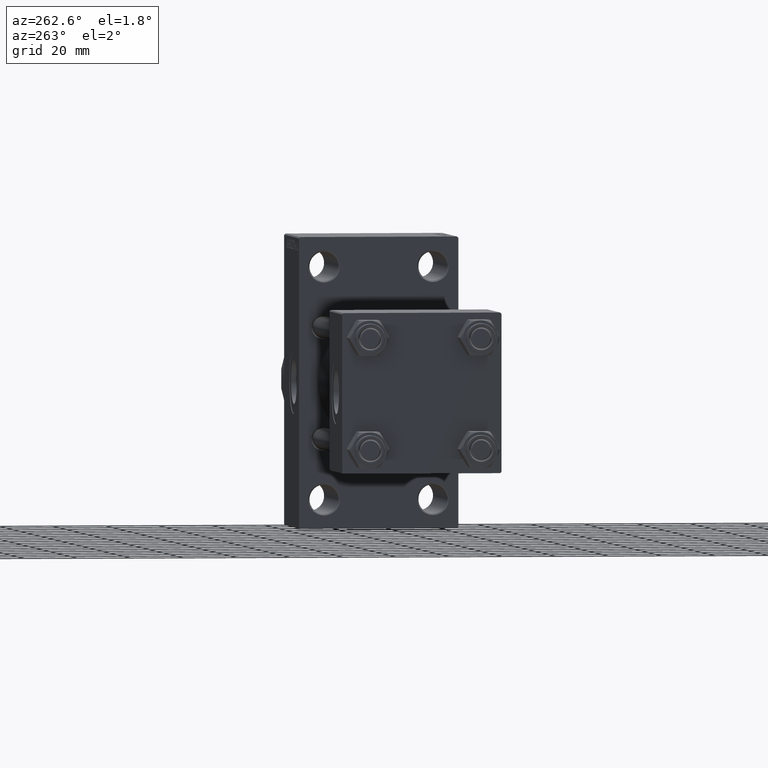
[diagram: clean part render]
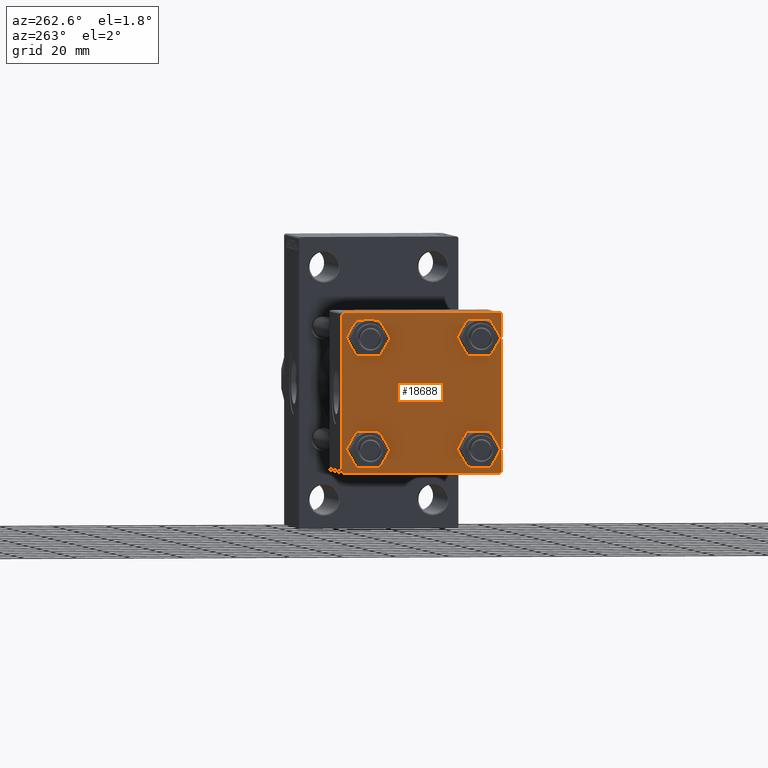
[diagram: same view with one face highlighted and labeled with its STEP entity id]
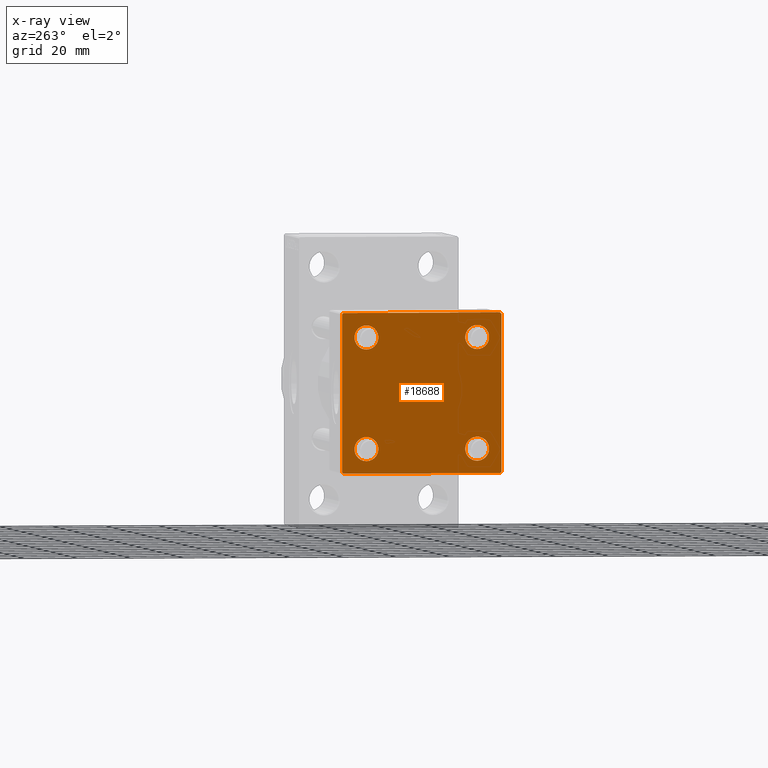
[diagram: x-ray of the same camera — body ghosted, the highlighted face saturated]
A machine part, auxiliary view. The second image highlights one B-rep face of the part: STEP entity #18688.
The next image is the same camera in x-ray: the body ghosted, the highlighted face saturated — about 0% of this face is hidden behind the body in this view.
In plain terms, the highlighted planar face has unit normal (-1, 0, 0).
Its self-contained STEP definition (entity closure, byte-faithful):
#886 = VERTEX_POINT ( 'NONE', #47175 ) ;
#973 = VECTOR ( 'NONE', #41781, 1000.000000000000000 ) ;
#1042 = DIRECTION ( 'NONE',  ( 1.000000000000000000, -0.000000000000000000, 0.000000000000000000 ) ) ;
#1069 = AXIS2_PLACEMENT_3D ( 'NONE', #19971, #42387, #27452 ) ;
#1319 = EDGE_CURVE ( 'NONE', #44512, #40948, #37919, .T. ) ;
#1399 = CIRCLE ( 'NONE', #40701, 4.500000000000017764 ) ;
#1974 = FACE_BOUND ( 'NONE', #31909, .T. ) ;
#2063 = ORIENTED_EDGE ( 'NONE', *, *, #30454, .T. ) ;
#2210 = CARTESIAN_POINT ( 'NONE',  ( 0.000000000000000000, 0.000000000000000000, 0.000000000000000000 ) ) ;
#2260 = VERTEX_POINT ( 'NONE', #24623 ) ;
#2820 = ORIENTED_EDGE ( 'NONE', *, *, #7984, .F. ) ;
#2905 = CARTESIAN_POINT ( 'NONE',  ( 0.000000000000000000, 20.84999999999999787, 20.85000000000000142 ) ) ;
#3078 = LINE ( 'NONE', #32989, #40359 ) ;
#3117 = CARTESIAN_POINT ( 'NONE',  ( 0.000000000000000000, -20.84999999999999076, 16.34999999999998721 ) ) ;
#3357 = DIRECTION ( 'NONE',  ( 0.000000000000000000, -0.7071067811865474617, 0.7071067811865474617 ) ) ;
#3779 = CARTESIAN_POINT ( 'NONE',  ( 0.000000000000000000, 20.84999999999999787, -20.85000000000000142 ) ) ;
#4187 = EDGE_CURVE ( 'NONE', #17090, #33267, #42508, .T. ) ;
#4341 = VECTOR ( 'NONE', #25258, 1000.000000000000114 ) ;
#4484 = AXIS2_PLACEMENT_3D ( 'NONE', #47143, #14578, #29522 ) ;
#4715 = DIRECTION ( 'NONE',  ( 0.000000000000000000, 0.000000000000000000, 1.000000000000000000 ) ) ;
#4888 = CARTESIAN_POINT ( 'NONE',  ( 0.000000000000000000, 29.99999999999999289, 30.00000000000000000 ) ) ;
#4902 = CARTESIAN_POINT ( 'NONE',  ( 0.000000000000000000, 20.84999999999999787, -20.85000000000000142 ) ) ;
#5201 = CIRCLE ( 'NONE', #12139, 4.500000000000017764 ) ;
#6019 = CARTESIAN_POINT ( 'NONE',  ( 0.000000000000000000, 29.49999999999999289, 30.00000000000000000 ) ) ;
#6342 = CIRCLE ( 'NONE', #12512, 4.500000000000017764 ) ;
#7045 = CARTESIAN_POINT ( 'NONE',  ( 0.000000000000000000, 29.99999999999999289, -30.00000000000000000 ) ) ;
#7050 = CIRCLE ( 'NONE', #13169, 4.500000000000017764 ) ;
#7244 = CARTESIAN_POINT ( 'NONE',  ( 0.000000000000000000, 29.99999999999999289, 30.00000000000000000 ) ) ;
#7424 = AXIS2_PLACEMENT_3D ( 'NONE', #3779, #18495, #44314 ) ;
#7984 = EDGE_CURVE ( 'NONE', #44512, #43931, #3078, .T. ) ;
#9334 = CARTESIAN_POINT ( 'NONE',  ( 0.000000000000000000, -30.00000000000000000, 29.49999999999999289 ) ) ;
#9356 = ORIENTED_EDGE ( 'NONE', *, *, #11425, .T. ) ;
#9477 = FACE_OUTER_BOUND ( 'NONE', #43335, .T. ) ;
#10304 = CIRCLE ( 'NONE', #1069, 4.500000000000017764 ) ;
#10606 = CARTESIAN_POINT ( 'NONE',  ( 0.000000000000000000, -29.75000000000001066, -29.75000000000001066 ) ) ;
#10803 = CARTESIAN_POINT ( 'NONE',  ( 0.000000000000000000, 29.49999999999997868, -30.00000000000000000 ) ) ;
#10908 = DIRECTION ( 'NONE',  ( 0.000000000000000000, -1.000000000000000000, -1.156482317317871725E-16 ) ) ;
#11425 = EDGE_CURVE ( 'NONE', #20585, #886, #10304, .T. ) ;
#12139 = AXIS2_PLACEMENT_3D ( 'NONE', #39121, #35501, #35042 ) ;
#12358 = LINE ( 'NONE', #4888, #973 ) ;
#12512 = AXIS2_PLACEMENT_3D ( 'NONE', #23046, #37759, #4715 ) ;
#13169 = AXIS2_PLACEMENT_3D ( 'NONE', #4902, #1042, #16222 ) ;
#13318 = DIRECTION ( 'NONE',  ( -1.000000000000000000, 0.000000000000000000, -0.000000000000000000 ) ) ;
#13342 = ORIENTED_EDGE ( 'NONE', *, *, #27072, .F. ) ;
#13635 = VERTEX_POINT ( 'NONE', #14742 ) ;
#13641 = ORIENTED_EDGE ( 'NONE', *, *, #13877, .T. ) ;
#13745 = CARTESIAN_POINT ( 'NONE',  ( 0.000000000000000000, -20.84999999999999076, 25.35000000000002274 ) ) ;
#13877 = EDGE_CURVE ( 'NONE', #13635, #43931, #13961, .T. ) ;
#13961 = LINE ( 'NONE', #10606, #41641 ) ;
#14236 = VECTOR ( 'NONE', #43655, 1000.000000000000000 ) ;
#14549 = EDGE_CURVE ( 'NONE', #28170, #13635, #36704, .T. ) ;
#14578 = DIRECTION ( 'NONE',  ( 1.000000000000000000, -0.000000000000000000, 0.000000000000000000 ) ) ;
#14651 = DIRECTION ( 'NONE',  ( 0.000000000000000000, 0.000000000000000000, -1.000000000000000000 ) ) ;
#14742 = CARTESIAN_POINT ( 'NONE',  ( 0.000000000000000000, -29.50000000000000000, -30.00000000000000711 ) ) ;
#14973 = VERTEX_POINT ( 'NONE', #3117 ) ;
#14977 = ORIENTED_EDGE ( 'NONE', *, *, #34418, .T. ) ;
#16222 = DIRECTION ( 'NONE',  ( 0.000000000000000000, 0.000000000000000000, 1.000000000000000000 ) ) ;
#16577 = CARTESIAN_POINT ( 'NONE',  ( 0.000000000000000000, -20.84999999999999076, 20.85000000000000497 ) ) ;
#16702 = FACE_BOUND ( 'NONE', #46476, .T. ) ;
#17090 = VERTEX_POINT ( 'NONE', #23863 ) ;
#17143 = VERTEX_POINT ( 'NONE', #6019 ) ;
#18286 = EDGE_CURVE ( 'NONE', #33267, #17090, #6342, .T. ) ;
#18495 = DIRECTION ( 'NONE',  ( 1.000000000000000000, -0.000000000000000000, 0.000000000000000000 ) ) ;
#18688 = ADVANCED_FACE ( 'NONE', ( #1974, #16702, #34562, #27772, #9477 ), #35269, .T. ) ;
#19477 = AXIS2_PLACEMENT_3D ( 'NONE', #2210, #13318, #27088 ) ;
#19828 = ORIENTED_EDGE ( 'NONE', *, *, #32941, .T. ) ;
#19971 = CARTESIAN_POINT ( 'NONE',  ( 0.000000000000000000, -20.84999999999999076, -20.85000000000000497 ) ) ;
#20585 = VERTEX_POINT ( 'NONE', #47024 ) ;
#21275 = CIRCLE ( 'NONE', #7424, 4.500000000000017764 ) ;
#21649 = VERTEX_POINT ( 'NONE', #44387 ) ;
#22095 = ORIENTED_EDGE ( 'NONE', *, *, #1319, .T. ) ;
#22172 = LINE ( 'NONE', #7244, #14236 ) ;
#22181 = EDGE_CURVE ( 'NONE', #38784, #21649, #12358, .T. ) ;
#23046 = CARTESIAN_POINT ( 'NONE',  ( 0.000000000000000000, 20.84999999999999787, 20.85000000000000142 ) ) ;
#23260 = ORIENTED_EDGE ( 'NONE', *, *, #27552, .T. ) ;
#23509 = CARTESIAN_POINT ( 'NONE',  ( 0.000000000000000000, -30.00000000000000000, -29.50000000000001776 ) ) ;
#23863 = CARTESIAN_POINT ( 'NONE',  ( 0.000000000000000000, 20.84999999999999787, 25.35000000000001918 ) ) ;
#23930 = VECTOR ( 'NONE', #10908, 1000.000000000000000 ) ;
#24623 = CARTESIAN_POINT ( 'NONE',  ( 0.000000000000000000, 20.84999999999999787, -16.34999999999998366 ) ) ;
#25150 = LINE ( 'NONE', #43231, #47355 ) ;
#25258 = DIRECTION ( 'NONE',  ( 0.000000000000000000, 0.7071067811865474617, -0.7071067811865474617 ) ) ;
#27072 = EDGE_CURVE ( 'NONE', #17143, #40948, #22172, .T. ) ;
#27088 = DIRECTION ( 'NONE',  ( -0.000000000000000000, 0.000000000000000000, 1.000000000000000000 ) ) ;
#27263 = VERTEX_POINT ( 'NONE', #28877 ) ;
#27358 = EDGE_LOOP ( 'NONE', ( #30775, #38514 ) ) ;
#27440 = CARTESIAN_POINT ( 'NONE',  ( 0.000000000000000000, -29.49999999999998579, 29.99999999999999289 ) ) ;
#27452 = DIRECTION ( 'NONE',  ( 0.000000000000000000, 0.000000000000000000, 1.000000000000000000 ) ) ;
#27552 = EDGE_CURVE ( 'NONE', #21649, #28170, #25150, .T. ) ;
#27772 = FACE_BOUND ( 'NONE', #27358, .T. ) ;
#28170 = VERTEX_POINT ( 'NONE', #10803 ) ;
#28877 = CARTESIAN_POINT ( 'NONE',  ( 0.000000000000000000, 20.84999999999999787, -25.35000000000001918 ) ) ;
#29522 = DIRECTION ( 'NONE',  ( 0.000000000000000000, 0.000000000000000000, 1.000000000000000000 ) ) ;
#30090 = VECTOR ( 'NONE', #34310, 1000.000000000000114 ) ;
#30354 = EDGE_CURVE ( 'NONE', #17143, #38784, #35635, .T. ) ;
#30454 = EDGE_CURVE ( 'NONE', #2260, #27263, #21275, .T. ) ;
#30775 = ORIENTED_EDGE ( 'NONE', *, *, #4187, .T. ) ;
#31622 = CARTESIAN_POINT ( 'NONE',  ( 0.000000000000000000, 29.99999999999999289, 29.50000000000000000 ) ) ;
#31761 = CARTESIAN_POINT ( 'NONE',  ( 0.000000000000000000, 29.74999999999999645, 29.74999999999999645 ) ) ;
#31909 = EDGE_LOOP ( 'NONE', ( #42200, #19828 ) ) ;
#32054 = CARTESIAN_POINT ( 'NONE',  ( 0.000000000000000000, 20.84999999999999787, 16.34999999999998366 ) ) ;
#32322 = DIRECTION ( 'NONE',  ( 1.000000000000000000, -0.000000000000000000, 0.000000000000000000 ) ) ;
#32941 = EDGE_CURVE ( 'NONE', #14973, #36099, #5201, .T. ) ;
#32953 = CIRCLE ( 'NONE', #4484, 4.500000000000017764 ) ;
#32989 = CARTESIAN_POINT ( 'NONE',  ( 0.000000000000000000, -30.00000000000000000, 29.99999999999999289 ) ) ;
#33267 = VERTEX_POINT ( 'NONE', #32054 ) ;
#34310 = DIRECTION ( 'NONE',  ( -0.000000000000000000, 0.7071067811865474617, 0.7071067811865474617 ) ) ;
#34418 = EDGE_CURVE ( 'NONE', #886, #20585, #32953, .T. ) ;
#34562 = FACE_BOUND ( 'NONE', #41622, .T. ) ;
#35042 = DIRECTION ( 'NONE',  ( 0.000000000000000000, 0.000000000000000000, 1.000000000000000000 ) ) ;
#35269 = PLANE ( 'NONE',  #19477 ) ;
#35501 = DIRECTION ( 'NONE',  ( 1.000000000000000000, -0.000000000000000000, 0.000000000000000000 ) ) ;
#35635 = LINE ( 'NONE', #31761, #4341 ) ;
#36099 = VERTEX_POINT ( 'NONE', #13745 ) ;
#36704 = LINE ( 'NONE', #7045, #23930 ) ;
#37110 = AXIS2_PLACEMENT_3D ( 'NONE', #2905, #32322, #47038 ) ;
#37451 = CARTESIAN_POINT ( 'NONE',  ( -0.000000000000000000, -29.74999999999999645, 29.74999999999999645 ) ) ;
#37759 = DIRECTION ( 'NONE',  ( 1.000000000000000000, -0.000000000000000000, 0.000000000000000000 ) ) ;
#37919 = LINE ( 'NONE', #37451, #30090 ) ;
#38181 = EDGE_CURVE ( 'NONE', #36099, #14973, #1399, .T. ) ;
#38514 = ORIENTED_EDGE ( 'NONE', *, *, #18286, .T. ) ;
#38784 = VERTEX_POINT ( 'NONE', #31622 ) ;
#39121 = CARTESIAN_POINT ( 'NONE',  ( 0.000000000000000000, -20.84999999999999076, 20.85000000000000497 ) ) ;
#40359 = VECTOR ( 'NONE', #14651, 1000.000000000000000 ) ;
#40701 = AXIS2_PLACEMENT_3D ( 'NONE', #16577, #42602, #43078 ) ;
#40948 = VERTEX_POINT ( 'NONE', #27440 ) ;
#41274 = ORIENTED_EDGE ( 'NONE', *, *, #22181, .T. ) ;
#41622 = EDGE_LOOP ( 'NONE', ( #2063, #44772 ) ) ;
#41641 = VECTOR ( 'NONE', #3357, 1000.000000000000114 ) ;
#41781 = DIRECTION ( 'NONE',  ( 0.000000000000000000, 0.000000000000000000, -1.000000000000000000 ) ) ;
#42200 = ORIENTED_EDGE ( 'NONE', *, *, #38181, .T. ) ;
#42387 = DIRECTION ( 'NONE',  ( 1.000000000000000000, -0.000000000000000000, 0.000000000000000000 ) ) ;
#42508 = CIRCLE ( 'NONE', #37110, 4.500000000000017764 ) ;
#42570 = ORIENTED_EDGE ( 'NONE', *, *, #30354, .T. ) ;
#42602 = DIRECTION ( 'NONE',  ( 1.000000000000000000, -0.000000000000000000, 0.000000000000000000 ) ) ;
#43078 = DIRECTION ( 'NONE',  ( 0.000000000000000000, 0.000000000000000000, 1.000000000000000000 ) ) ;
#43231 = CARTESIAN_POINT ( 'NONE',  ( 0.000000000000000000, 29.74999999999957723, -29.75000000000040501 ) ) ;
#43335 = EDGE_LOOP ( 'NONE', ( #41274, #23260, #47273, #13641, #2820, #22095, #13342, #42570 ) ) ;
#43655 = DIRECTION ( 'NONE',  ( 0.000000000000000000, -1.000000000000000000, -1.156482317317871725E-16 ) ) ;
#43931 = VERTEX_POINT ( 'NONE', #23509 ) ;
#44314 = DIRECTION ( 'NONE',  ( 0.000000000000000000, 0.000000000000000000, 1.000000000000000000 ) ) ;
#44387 = CARTESIAN_POINT ( 'NONE',  ( 0.000000000000000000, 29.99999999999999289, -29.50000000000000000 ) ) ;
#44512 = VERTEX_POINT ( 'NONE', #9334 ) ;
#44772 = ORIENTED_EDGE ( 'NONE', *, *, #45010, .T. ) ;
#45010 = EDGE_CURVE ( 'NONE', #27263, #2260, #7050, .T. ) ;
#46476 = EDGE_LOOP ( 'NONE', ( #9356, #14977 ) ) ;
#47024 = CARTESIAN_POINT ( 'NONE',  ( 0.000000000000000000, -20.84999999999999076, -16.34999999999998721 ) ) ;
#47038 = DIRECTION ( 'NONE',  ( 0.000000000000000000, 0.000000000000000000, 1.000000000000000000 ) ) ;
#47092 = DIRECTION ( 'NONE',  ( -0.000000000000000000, -0.7071067811865574537, -0.7071067811865376918 ) ) ;
#47143 = CARTESIAN_POINT ( 'NONE',  ( 0.000000000000000000, -20.84999999999999076, -20.85000000000000497 ) ) ;
#47175 = CARTESIAN_POINT ( 'NONE',  ( 0.000000000000000000, -20.84999999999999076, -25.35000000000002274 ) ) ;
#47273 = ORIENTED_EDGE ( 'NONE', *, *, #14549, .T. ) ;
#47355 = VECTOR ( 'NONE', #47092, 999.9999999999998863 ) ;